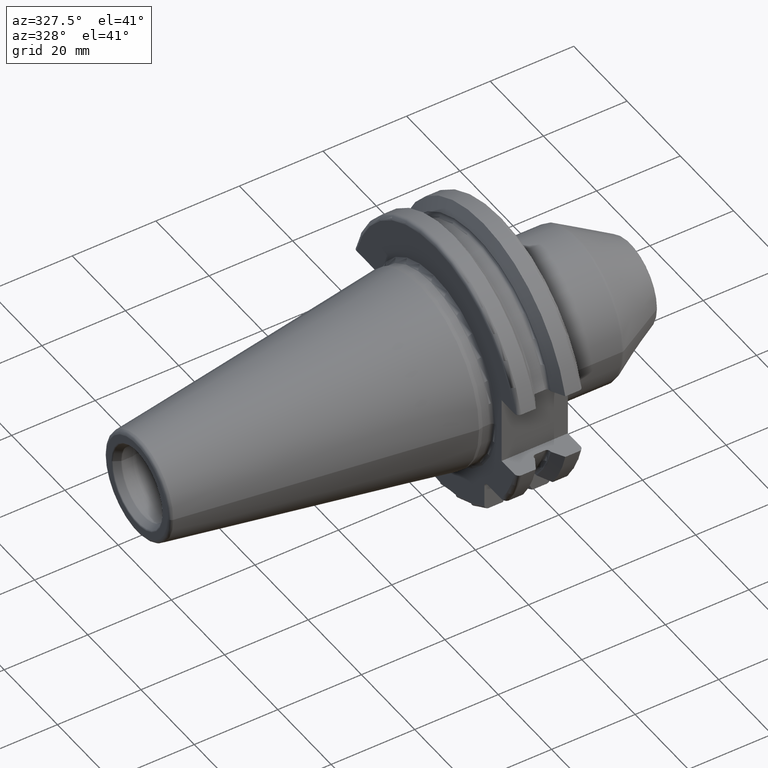
[diagram: clean part render]
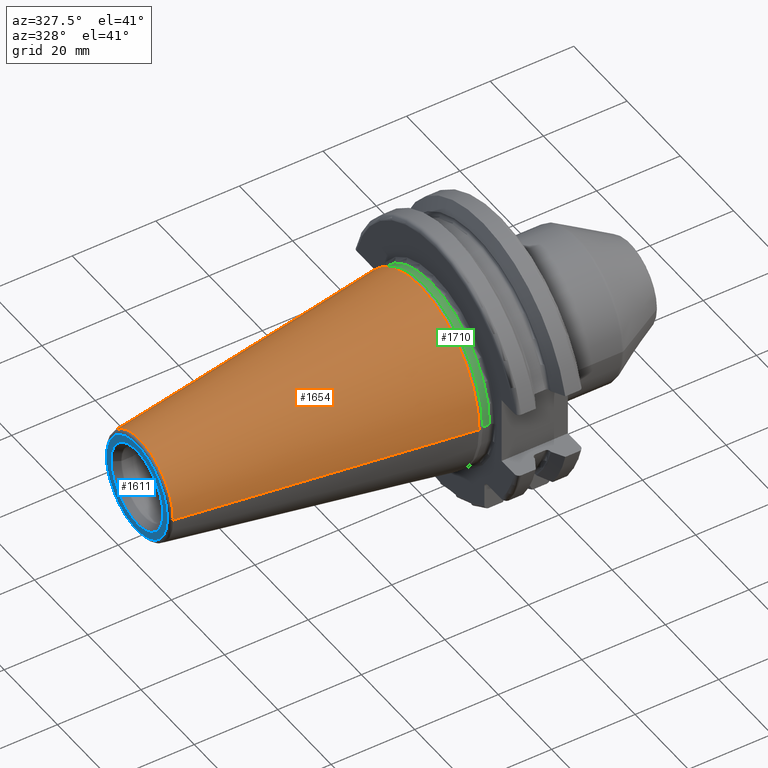
[diagram: same view with three faces highlighted in distinct colors, each labeled with its STEP entity id]
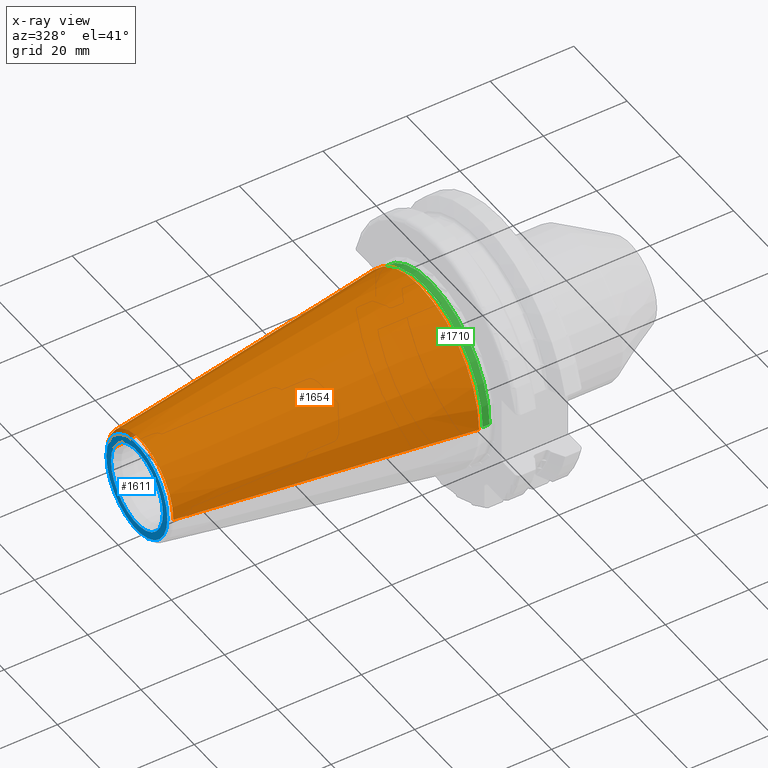
[diagram: x-ray of the same camera — body ghosted, the three highlighted faces saturated]
A machine part, auxiliary view with three faces highlighted in distinct colors.
The next image is the same camera in x-ray (body ghosted, the three faces saturated) — at least one of them is partly hidden behind the body in this view.
Their STEP definitions:

[orange] entity #1654 — the highlighted conical surface has half-angle 8.298 deg.
#37=CARTESIAN_POINT('',(-6.743710273571E1,0.E0,0.E0));
#38=DIRECTION('',(1.E0,0.E0,0.E0));
#39=DIRECTION('',(0.E0,1.E0,0.E0));
#40=AXIS2_PLACEMENT_3D('',#37,#38,#39);
#42=CARTESIAN_POINT('',(-4.896823332305E-1,0.E0,0.E0));
#43=DIRECTION('',(1.E0,0.E0,0.E0));
#44=DIRECTION('',(0.E0,1.E0,0.E0));
#45=AXIS2_PLACEMENT_3D('',#42,#43,#44);
#47=DIRECTION('',(-9.895312636440E-1,-1.443186691705E-1,0.E0));
#48=VECTOR('',#47,6.765568998391E1);
#49=CARTESIAN_POINT('',(-4.896823332305E-1,2.215358204157E1,0.E0));
#50=LINE('',#49,#48);
#51=DIRECTION('',(-9.895312636440E-1,1.443186691705E-1,0.E0));
#52=VECTOR('',#51,6.765568998391E1);
#53=CARTESIAN_POINT('',(-4.896823332305E-1,-2.215358204157E1,0.E0));
#54=LINE('',#53,#52);
#1330=CARTESIAN_POINT('',(-6.743710273571E1,1.238960290128E1,0.E0));
#1332=VERTEX_POINT('',#1330);
#1334=CARTESIAN_POINT('',(-6.743710273571E1,-1.238960290128E1,0.E0));
#1336=VERTEX_POINT('',#1334);
#1398=CARTESIAN_POINT('',(-4.896823332305E-1,2.215358204157E1,0.E0));
#1399=VERTEX_POINT('',#1398);
#1400=CARTESIAN_POINT('',(-4.896823332305E-1,-2.215358204157E1,0.E0));
#1401=VERTEX_POINT('',#1400);
#1640=CARTESIAN_POINT('',(-3.396339253447E1,0.E0,0.E0));
#1641=DIRECTION('',(1.E0,0.E0,0.E0));
#1642=DIRECTION('',(0.E0,-1.E0,0.E0));
#1643=AXIS2_PLACEMENT_3D('',#1640,#1641,#1642);
#1644=CONICAL_SURFACE('',#1643,1.727159247143E1,8.297826828206E0);
#1646=ORIENTED_EDGE('',*,*,#1645,.F.);
#1648=ORIENTED_EDGE('',*,*,#1647,.T.);
#1650=ORIENTED_EDGE('',*,*,#1649,.T.);
#1651=ORIENTED_EDGE('',*,*,#1633,.F.);
#1652=EDGE_LOOP('',(#1646,#1648,#1650,#1651));
#1653=FACE_OUTER_BOUND('',#1652,.F.);
#1654=ADVANCED_FACE('',(#1653),#1644,.T.);
#41=CIRCLE('',#40,1.238960290128E1);
#46=CIRCLE('',#45,2.215358204157E1);
#1633=EDGE_CURVE('',#1332,#1336,#41,.T.);
#1645=EDGE_CURVE('',#1399,#1332,#50,.T.);
#1647=EDGE_CURVE('',#1399,#1401,#46,.T.);
#1649=EDGE_CURVE('',#1401,#1336,#54,.T.);

[blue] entity #1611 — the highlighted planar face has unit normal (1, 0, 0).
#2=CARTESIAN_POINT('',(-6.825E1,0.E0,0.E0));
#3=DIRECTION('',(-1.E0,0.E0,0.E0));
#4=DIRECTION('',(0.E0,1.E0,0.E0));
#5=AXIS2_PLACEMENT_3D('',#2,#3,#4);
#7=CARTESIAN_POINT('',(-6.825E1,0.E0,0.E0));
#8=DIRECTION('',(1.E0,0.E0,0.E0));
#9=DIRECTION('',(0.E0,1.E0,0.E0));
#10=AXIS2_PLACEMENT_3D('',#7,#8,#9);
#12=CARTESIAN_POINT('',(-6.825E1,0.E0,0.E0));
#13=DIRECTION('',(1.E0,0.E0,0.E0));
#14=DIRECTION('',(0.E0,1.E0,0.E0));
#15=AXIS2_PLACEMENT_3D('',#12,#13,#14);
#17=CARTESIAN_POINT('',(-6.825E1,0.E0,0.E0));
#18=DIRECTION('',(1.E0,0.E0,0.E0));
#19=DIRECTION('',(0.E0,-1.E0,0.E0));
#20=AXIS2_PLACEMENT_3D('',#17,#18,#19);
#1331=CARTESIAN_POINT('',(-6.825E1,1.144954820082E1,0.E0));
#1333=VERTEX_POINT('',#1331);
#1335=CARTESIAN_POINT('',(-6.825E1,-1.144954820082E1,0.E0));
#1337=VERTEX_POINT('',#1335);
#1394=CARTESIAN_POINT('',(-6.825E1,9.730940107676E0,0.E0));
#1395=CARTESIAN_POINT('',(-6.825E1,-9.730940107676E0,0.E0));
#1396=VERTEX_POINT('',#1394);
#1397=VERTEX_POINT('',#1395);
#1594=CARTESIAN_POINT('',(-6.825E1,0.E0,0.E0));
#1595=DIRECTION('',(1.E0,0.E0,0.E0));
#1596=DIRECTION('',(0.E0,-1.E0,0.E0));
#1597=AXIS2_PLACEMENT_3D('',#1594,#1595,#1596);
#1598=PLANE('',#1597);
#1600=ORIENTED_EDGE('',*,*,#1599,.F.);
#1602=ORIENTED_EDGE('',*,*,#1601,.T.);
#1603=EDGE_LOOP('',(#1600,#1602));
#1604=FACE_OUTER_BOUND('',#1603,.F.);
#1606=ORIENTED_EDGE('',*,*,#1605,.F.);
#1608=ORIENTED_EDGE('',*,*,#1607,.F.);
#1609=EDGE_LOOP('',(#1606,#1608));
#1610=FACE_BOUND('',#1609,.F.);
#1611=ADVANCED_FACE('',(#1604,#1610),#1598,.F.);
#6=CIRCLE('',#5,1.144954820082E1);
#11=CIRCLE('',#10,1.144954820082E1);
#16=CIRCLE('',#15,9.730940107676E0);
#21=CIRCLE('',#20,9.730940107676E0);
#1599=EDGE_CURVE('',#1333,#1337,#6,.T.);
#1601=EDGE_CURVE('',#1333,#1337,#11,.T.);
#1605=EDGE_CURVE('',#1396,#1397,#16,.T.);
#1607=EDGE_CURVE('',#1397,#1396,#21,.T.);

[green] entity #1710 — the highlighted cylindrical surface (partial cylindrical patch) has radius 21.875 mm, axis along (1, 0, 0).
#73=CARTESIAN_POINT('',(5.5E-1,0.E0,0.E0));
#74=DIRECTION('',(1.E0,0.E0,0.E0));
#75=DIRECTION('',(0.E0,1.E0,0.E0));
#76=AXIS2_PLACEMENT_3D('',#73,#74,#75);
#78=CARTESIAN_POINT('',(2.2E0,0.E0,0.E0));
#79=DIRECTION('',(1.E0,0.E0,0.E0));
#80=DIRECTION('',(0.E0,1.E0,0.E0));
#81=AXIS2_PLACEMENT_3D('',#78,#79,#80);
#83=DIRECTION('',(-1.E0,0.E0,0.E0));
#84=VECTOR('',#83,1.65E0);
#85=CARTESIAN_POINT('',(2.2E0,2.1875E1,0.E0));
#86=LINE('',#85,#84);
#87=DIRECTION('',(-1.E0,0.E0,0.E0));
#88=VECTOR('',#87,1.65E0);
#89=CARTESIAN_POINT('',(2.2E0,-2.1875E1,0.E0));
#90=LINE('',#89,#88);
#1338=CARTESIAN_POINT('',(2.2E0,2.1875E1,0.E0));
#1339=CARTESIAN_POINT('',(5.5E-1,2.1875E1,0.E0));
#1340=VERTEX_POINT('',#1338);
#1341=VERTEX_POINT('',#1339);
#1343=CARTESIAN_POINT('',(2.2E0,-2.1875E1,0.E0));
#1345=VERTEX_POINT('',#1343);
#1346=CARTESIAN_POINT('',(5.5E-1,-2.1875E1,0.E0));
#1347=VERTEX_POINT('',#1346);
#1696=CARTESIAN_POINT('',(-7.2615E1,0.E0,0.E0));
#1697=DIRECTION('',(1.E0,0.E0,0.E0));
#1698=DIRECTION('',(0.E0,-1.E0,0.E0));
#1699=AXIS2_PLACEMENT_3D('',#1696,#1697,#1698);
#1700=CYLINDRICAL_SURFACE('',#1699,2.1875E1);
#1702=ORIENTED_EDGE('',*,*,#1701,.F.);
#1704=ORIENTED_EDGE('',*,*,#1703,.T.);
#1706=ORIENTED_EDGE('',*,*,#1705,.T.);
#1707=ORIENTED_EDGE('',*,*,#1689,.F.);
#1708=EDGE_LOOP('',(#1702,#1704,#1706,#1707));
#1709=FACE_OUTER_BOUND('',#1708,.F.);
#1710=ADVANCED_FACE('',(#1709),#1700,.T.);
#77=CIRCLE('',#76,2.1875E1);
#82=CIRCLE('',#81,2.1875E1);
#1689=EDGE_CURVE('',#1341,#1347,#77,.T.);
#1701=EDGE_CURVE('',#1340,#1341,#86,.T.);
#1703=EDGE_CURVE('',#1340,#1345,#82,.T.);
#1705=EDGE_CURVE('',#1345,#1347,#90,.T.);